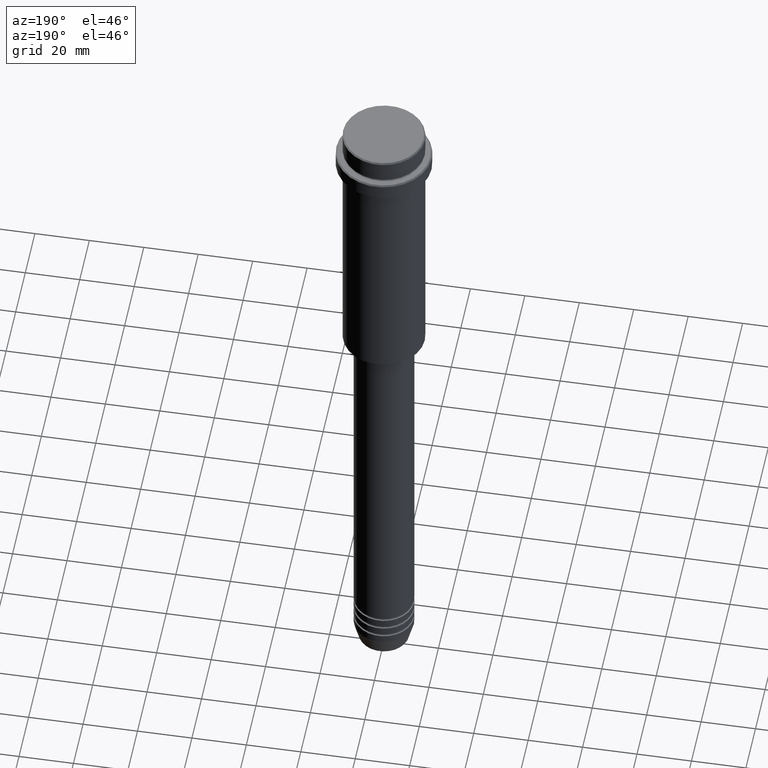
[diagram: clean part render]
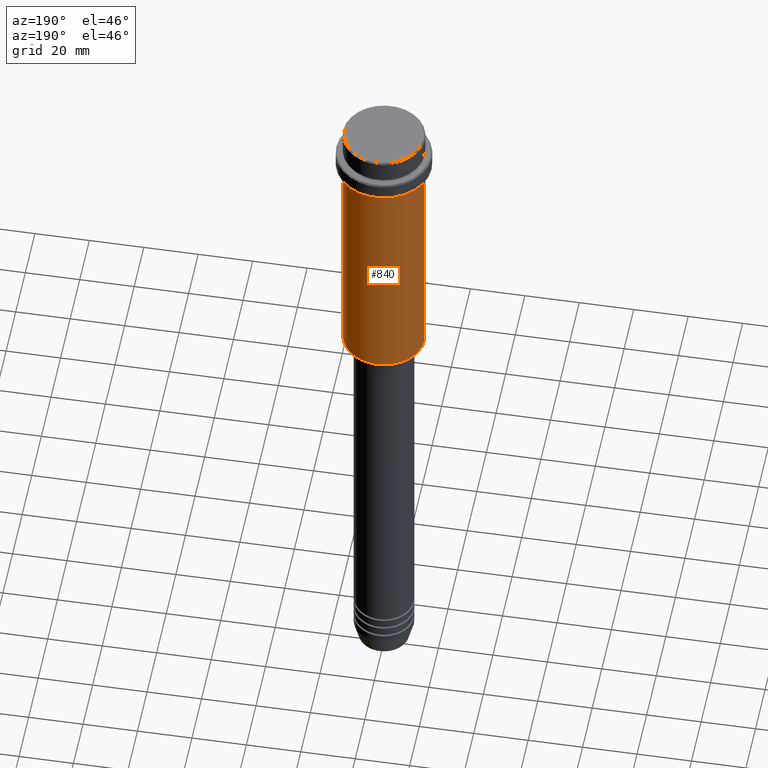
[diagram: same view with one face highlighted and labeled with its STEP entity id]
A machine part, auxiliary view. The second image highlights one B-rep face of the part: STEP entity #840.
In plain terms, the highlighted cylindrical surface (partial cylindrical patch) has radius 15 mm, axis along (-0, -0, 1).
Its self-contained STEP definition (entity closure, byte-faithful):
#24 = CARTESIAN_POINT ( 'NONE',  ( 0.000000000000000000, 0.000000000000000000, -16.00000000000000000 ) ) ;
#70 = ORIENTED_EDGE ( 'NONE', *, *, #160, .F. ) ;
#160 = EDGE_CURVE ( 'NONE', #221, #550, #661, .T. ) ;
#205 = CIRCLE ( 'NONE', #896, 15.00000000000000000 ) ;
#211 = CARTESIAN_POINT ( 'NONE',  ( -15.00000000000000355, 1.836970198721029983E-15, -16.00000000000000000 ) ) ;
#221 = VERTEX_POINT ( 'NONE', #1201 ) ;
#275 = ORIENTED_EDGE ( 'NONE', *, *, #1192, .F. ) ;
#279 = DIRECTION ( 'NONE',  ( -1.000000000000000000, 0.000000000000000000, 0.000000000000000000 ) ) ;
#345 = DIRECTION ( 'NONE',  ( -0.000000000000000000, -0.000000000000000000, 1.000000000000000000 ) ) ;
#361 = ORIENTED_EDGE ( 'NONE', *, *, #825, .T. ) ;
#375 = AXIS2_PLACEMENT_3D ( 'NONE', #1157, #1050, #708 ) ;
#378 = CYLINDRICAL_SURFACE ( 'NONE', #375, 15.00000000000000000 ) ;
#519 = VERTEX_POINT ( 'NONE', #211 ) ;
#550 = VERTEX_POINT ( 'NONE', #1313 ) ;
#553 = DIRECTION ( 'NONE',  ( -0.000000000000000000, -0.000000000000000000, 1.000000000000000000 ) ) ;
#595 = CARTESIAN_POINT ( 'NONE',  ( 0.000000000000000000, 0.000000000000000000, -104.4999999999999716 ) ) ;
#652 = VECTOR ( 'NONE', #713, 1000.000000000000000 ) ;
#661 = LINE ( 'NONE', #1325, #894 ) ;
#708 = DIRECTION ( 'NONE',  ( 1.000000000000000000, 0.000000000000000000, 0.000000000000000000 ) ) ;
#713 = DIRECTION ( 'NONE',  ( -0.000000000000000000, -0.000000000000000000, 1.000000000000000000 ) ) ;
#825 = EDGE_CURVE ( 'NONE', #961, #519, #1328, .T. ) ;
#840 = ADVANCED_FACE ( 'NONE', ( #933 ), #378, .T. ) ;
#859 = AXIS2_PLACEMENT_3D ( 'NONE', #24, #345, #1204 ) ;
#894 = VECTOR ( 'NONE', #553, 1000.000000000000000 ) ;
#896 = AXIS2_PLACEMENT_3D ( 'NONE', #595, #1249, #279 ) ;
#933 = FACE_OUTER_BOUND ( 'NONE', #1058, .T. ) ;
#944 = CIRCLE ( 'NONE', #859, 15.00000000000000178 ) ;
#961 = VERTEX_POINT ( 'NONE', #1384 ) ;
#1050 = DIRECTION ( 'NONE',  ( -0.000000000000000000, -0.000000000000000000, 1.000000000000000000 ) ) ;
#1058 = EDGE_LOOP ( 'NONE', ( #1117, #361, #275, #70 ) ) ;
#1117 = ORIENTED_EDGE ( 'NONE', *, *, #1411, .T. ) ;
#1157 = CARTESIAN_POINT ( 'NONE',  ( 0.000000000000000000, 0.000000000000000000, 0.000000000000000000 ) ) ;
#1192 = EDGE_CURVE ( 'NONE', #550, #519, #944, .T. ) ;
#1201 = CARTESIAN_POINT ( 'NONE',  ( 15.00000000000000000, 0.000000000000000000, -104.4999999999999716 ) ) ;
#1204 = DIRECTION ( 'NONE',  ( 1.000000000000000000, 0.000000000000000000, 0.000000000000000000 ) ) ;
#1249 = DIRECTION ( 'NONE',  ( -0.000000000000000000, -0.000000000000000000, 1.000000000000000000 ) ) ;
#1257 = CARTESIAN_POINT ( 'NONE',  ( -15.00000000000000000, 1.836970198721029589E-15, 0.000000000000000000 ) ) ;
#1313 = CARTESIAN_POINT ( 'NONE',  ( 15.00000000000000178, 0.000000000000000000, -16.00000000000000000 ) ) ;
#1325 = CARTESIAN_POINT ( 'NONE',  ( 15.00000000000000000, 0.000000000000000000, 0.000000000000000000 ) ) ;
#1328 = LINE ( 'NONE', #1257, #652 ) ;
#1384 = CARTESIAN_POINT ( 'NONE',  ( -15.00000000000000000, 1.836970198721029589E-15, -104.4999999999999716 ) ) ;
#1411 = EDGE_CURVE ( 'NONE', #221, #961, #205, .T. ) ;